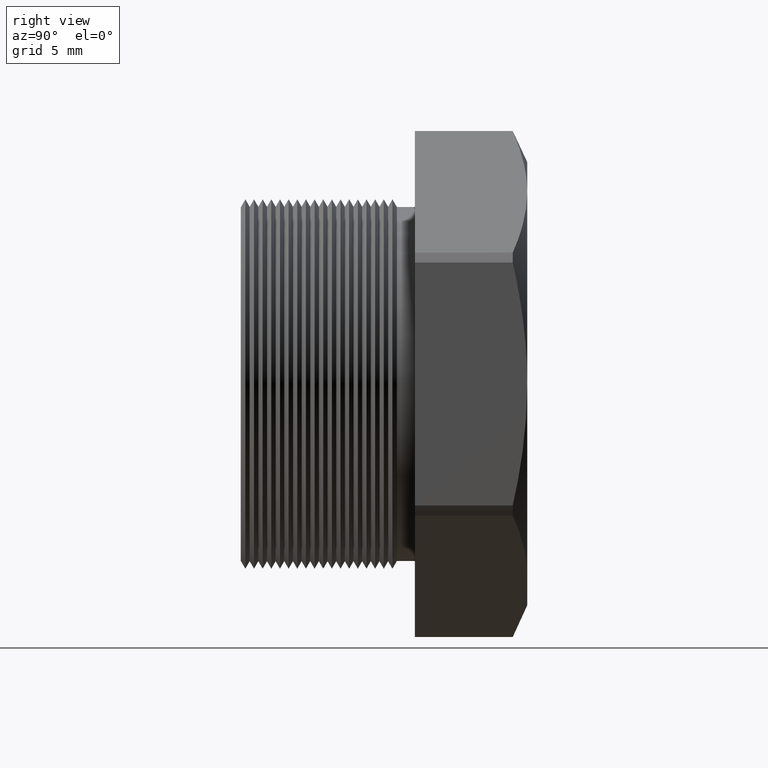
[diagram: clean part render]
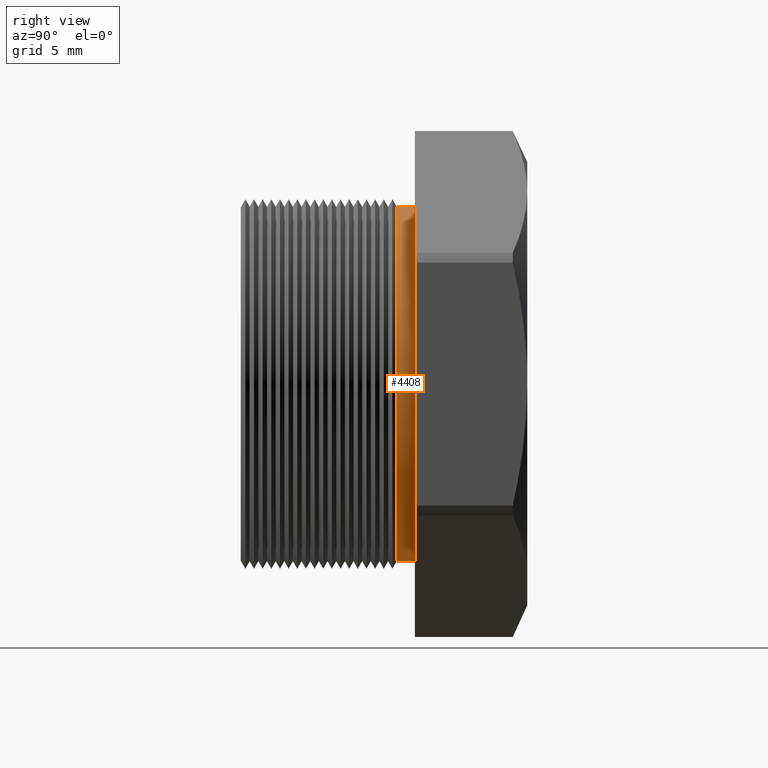
[diagram: same view with one face highlighted and labeled with its STEP entity id]
A machine part, right view. The second image highlights one B-rep face of the part: STEP entity #4408.
In plain terms, the highlighted cylindrical surface (partial cylindrical patch) has radius 8.001 mm, axis along (-0, -1, -0).
Its self-contained STEP definition (entity closure, byte-faithful):
#1678 = CIRCLE ( 'NONE', #1734, 0.3150000000000000000 ) ;
#1708 = CARTESIAN_POINT ( 'NONE',  ( 3.857637417314162700E-017, 0.0000000000000000000, 0.3150000000000000000 ) ) ;
#1709 = LINE ( 'NONE', #1708, #1771 ) ;
#1710 = CARTESIAN_POINT ( 'NONE',  ( 3.857637417314162700E-017, 0.2075548905829479300, 0.3150000000000000000 ) ) ;
#1711 = CARTESIAN_POINT ( 'NONE',  ( 0.0000000000000000000, 0.2075548905829479300, -0.3150000000000000000 ) ) ;
#1712 = DIRECTION ( 'NONE',  ( 0.0000000000000000000, 0.0000000000000000000, -1.000000000000000000 ) ) ;
#1713 = DIRECTION ( 'NONE',  ( -0.0000000000000000000, -1.000000000000000000, -0.0000000000000000000 ) ) ;
#1714 = CARTESIAN_POINT ( 'NONE',  ( 0.0000000000000000000, 0.2075548905829479300, 0.0000000000000000000 ) ) ;
#1715 = AXIS2_PLACEMENT_3D ( 'NONE', #1714, #1713, #1712 ) ;
#1716 = DIRECTION ( 'NONE',  ( 0.0000000000000000000, 0.0000000000000000000, -1.000000000000000000 ) ) ;
#1717 = DIRECTION ( 'NONE',  ( -0.0000000000000000000, -1.000000000000000000, -0.0000000000000000000 ) ) ;
#1718 = CARTESIAN_POINT ( 'NONE',  ( 0.0000000000000000000, 0.0000000000000000000, 0.0000000000000000000 ) ) ;
#1719 = AXIS2_PLACEMENT_3D ( 'NONE', #1718, #1717, #1716 ) ;
#1720 = CIRCLE ( 'NONE', #1715, 0.3150000000000000000 ) ;
#1721 = CYLINDRICAL_SURFACE ( 'NONE', #1719, 0.3150000000000000000 ) ;
#1726 = FACE_OUTER_BOUND ( 'NONE', #4409, .T. ) ;
#1729 = CARTESIAN_POINT ( 'NONE',  ( 3.857637417314162700E-017, 0.1755072448100088400, 0.3150000000000000000 ) ) ;
#1730 = CARTESIAN_POINT ( 'NONE',  ( 0.0000000000000000000, 0.1755072448100088400, -0.3150000000000000000 ) ) ;
#1731 = DIRECTION ( 'NONE',  ( 0.0000000000000000000, 0.0000000000000000000, -1.000000000000000000 ) ) ;
#1732 = DIRECTION ( 'NONE',  ( 0.0000000000000000000, -1.000000000000000000, 0.0000000000000000000 ) ) ;
#1733 = CARTESIAN_POINT ( 'NONE',  ( 0.0000000000000000000, 0.1755072448100088400, 0.0000000000000000000 ) ) ;
#1734 = AXIS2_PLACEMENT_3D ( 'NONE', #1733, #1732, #1731 ) ;
#1770 = DIRECTION ( 'NONE',  ( -0.0000000000000000000, -1.000000000000000000, -0.0000000000000000000 ) ) ;
#1771 = VECTOR ( 'NONE', #1770, 39.37007874015748100 ) ;
#2554 = DIRECTION ( 'NONE',  ( -0.0000000000000000000, -1.000000000000000000, -0.0000000000000000000 ) ) ;
#2555 = VECTOR ( 'NONE', #2554, 39.37007874015748100 ) ;
#2556 = CARTESIAN_POINT ( 'NONE',  ( 0.0000000000000000000, 0.0000000000000000000, -0.3150000000000000000 ) ) ;
#2557 = LINE ( 'NONE', #2556, #2555 ) ;
#4403 = EDGE_CURVE ( 'NONE', #4404, #4405, #1678, .T. ) ;
#4404 = VERTEX_POINT ( 'NONE', #1730 ) ;
#4405 = VERTEX_POINT ( 'NONE', #1729 ) ;
#4408 = ADVANCED_FACE ( 'NONE', ( #1726 ), #1721, .T. ) ;
#4409 = EDGE_LOOP ( 'NONE', ( #4410, #4414, #5022, #5023 ) ) ;
#4410 = ORIENTED_EDGE ( 'NONE', *, *, #4411, .T. ) ;
#4411 = EDGE_CURVE ( 'NONE', #4412, #4413, #1720, .T. ) ;
#4412 = VERTEX_POINT ( 'NONE', #1711 ) ;
#4413 = VERTEX_POINT ( 'NONE', #1710 ) ;
#4414 = ORIENTED_EDGE ( 'NONE', *, *, #4415, .T. ) ;
#4415 = EDGE_CURVE ( 'NONE', #4413, #4405, #1709, .T. ) ;
#5022 = ORIENTED_EDGE ( 'NONE', *, *, #4403, .F. ) ;
#5023 = ORIENTED_EDGE ( 'NONE', *, *, #5024, .F. ) ;
#5024 = EDGE_CURVE ( 'NONE', #4412, #4404, #2557, .T. ) ;